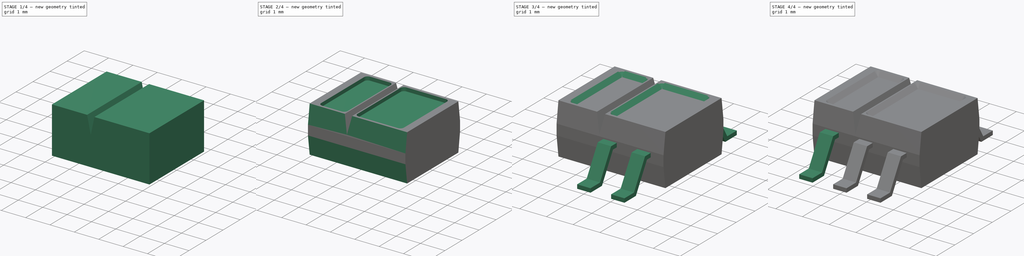
[diagram: build sequence overview — one tinted view per stage of 4, left to right]
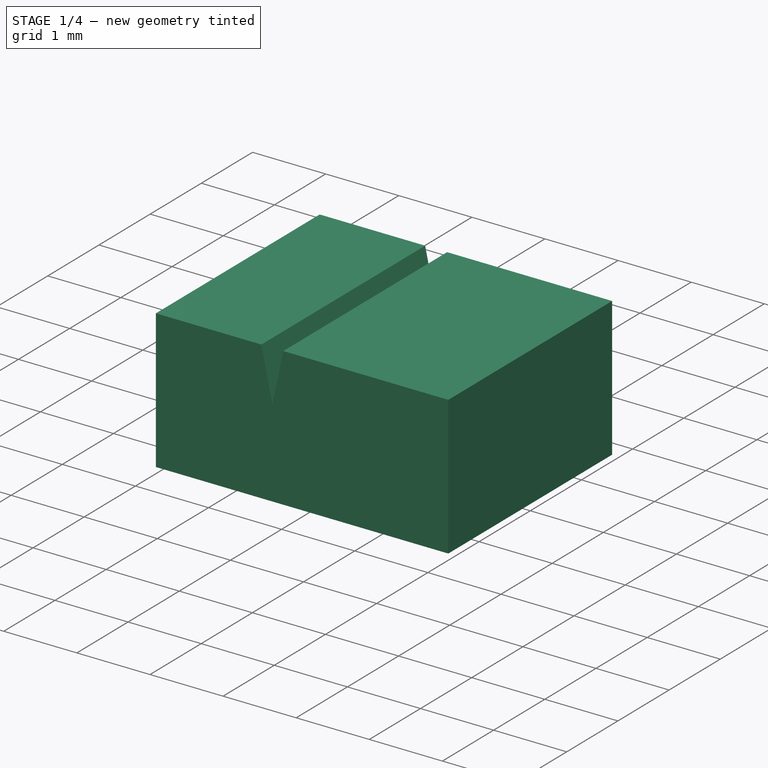
[diagram: stage 1 of 4 — iso view after this stage's code; geometry added in this stage tinted green]
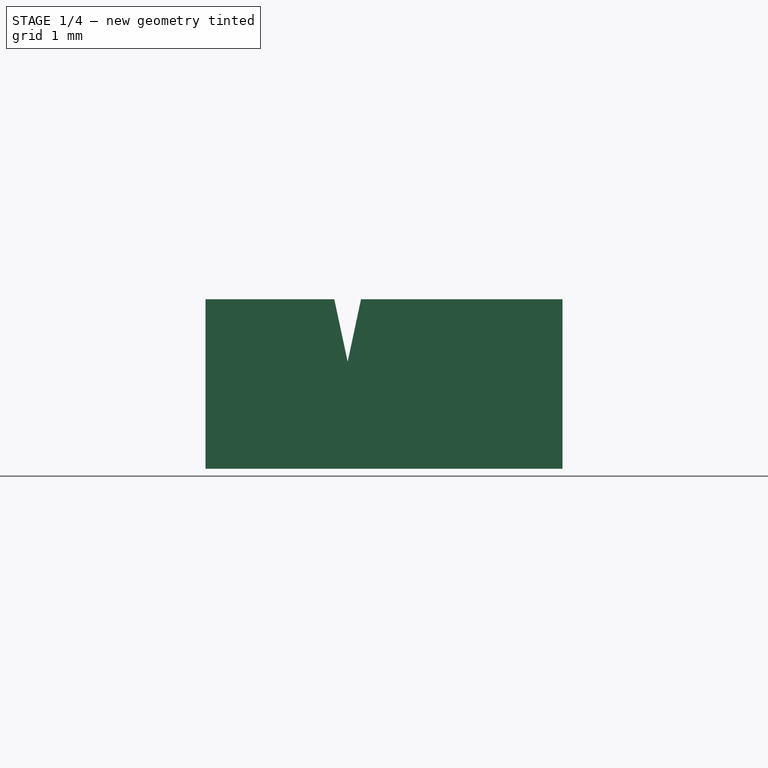
[diagram: stage 1 of 4 — front view after this stage's code; geometry added in this stage tinted green]
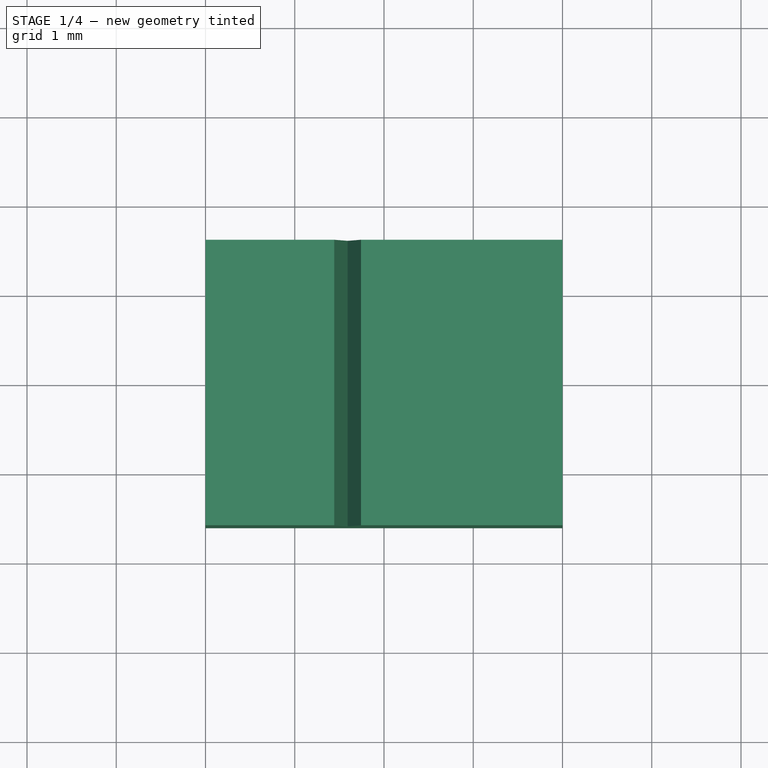
[diagram: stage 1 of 4 — top view after this stage's code; geometry added in this stage tinted green]
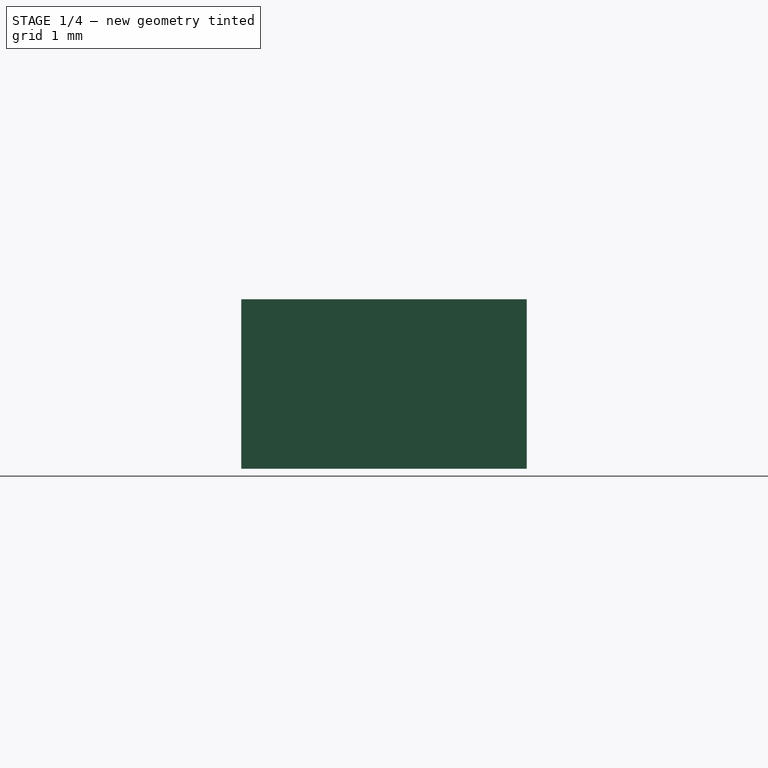
[diagram: stage 1 of 4 — right view after this stage's code; geometry added in this stage tinted green]
FCSTD DOCUMENT  (FreeCAD 0.16R6712 (Git))
Label: Osram_SFH9x0x
License: All rights reserved
LicenseURL: http://en.wikipedia.org/wiki/All_rights_reserved
objects: Sketcher::SketchObject×7, PartDesign::Pad×4, PartDesign::Pocket×3, PartDesign::Chamfer×1, Part::MultiFuse×1
note: 23 computed .brp shape members not serialized (recipe doc carries the construction recipe); baked Part::Feature solids carry a one-line shape summary decoded from their .brp

FEATURE [PartDesign::Pad] Pad
  Length = 1.9
  Length2 = 100
  Midplane = true
  Placement = pos=(0,0,1) rot=(0,0,1;0rad)
  Sketch = -> Sketch
  Type = 0
FEATURE [Sketcher::SketchObject] Sketch005
  ExternalGeometry = -> [Pad]
  Placement = pos=(0,-1.6,1) rot=(1,0,0;1.5708rad)
  Support = -> Pad [Face3]
  expr: Constraints[7] = 8.25 / 22.87 * 4
  sketch-geometry (3):
    g0: LineSegment StartX=-0.557062 StartY=0.95 StartZ=0 EndX=-0.407062 EndY=0.25 EndZ=0
    g1: LineSegment StartX=-0.407062 StartY=0.25 StartZ=0 EndX=-0.257062 EndY=0.95 EndZ=0
    g2: LineSegment StartX=-0.257062 StartY=0.95 StartZ=0 EndX=-0.557062 EndY=0.95 EndZ=0
  constraints (9):
    c: PointOnObject(g0,g-3)
    c: Coincident(g1,g0)
    c: PointOnObject(g1,g-3)
    c: Coincident(g2,g1)
    c: Coincident(g2,g0)
    c: DistanceX(g0,g1) = 0.3
    c: DistanceX(g0,g0) = 0.15
    c: DistanceX(g-4,g0) = 1.44294
    c: DistanceY(g0,g0) = 0.7
FEATURE [PartDesign::Pocket] Pocket
  Length = 5
  Placement = pos=(0,0,1) rot=(0,0,1;0rad)
  Sketch = -> Sketch005
  Type = 1
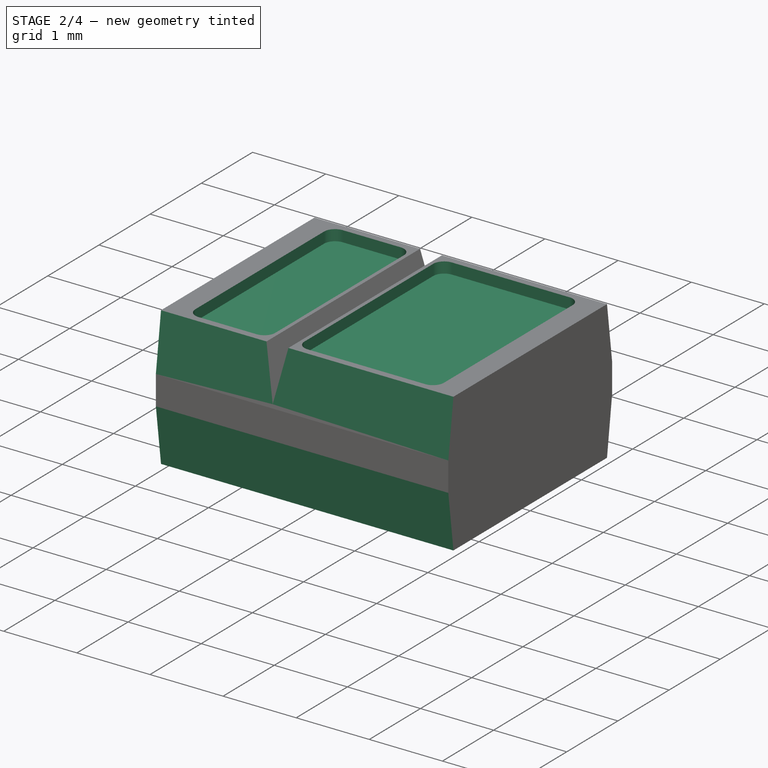
[diagram: stage 2 of 4 — iso view after this stage's code; geometry added in this stage tinted green]
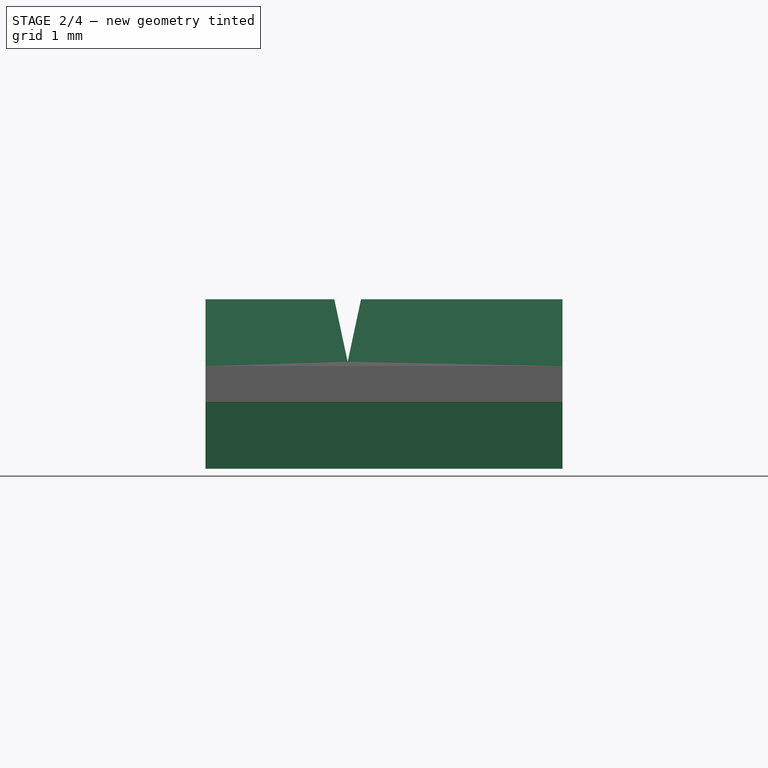
[diagram: stage 2 of 4 — front view after this stage's code; geometry added in this stage tinted green]
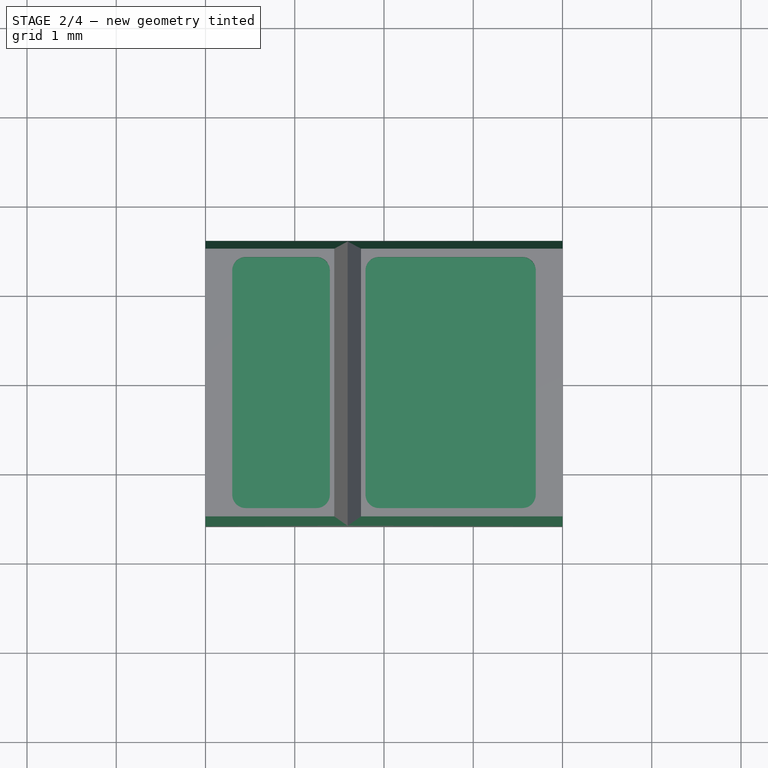
[diagram: stage 2 of 4 — top view after this stage's code; geometry added in this stage tinted green]
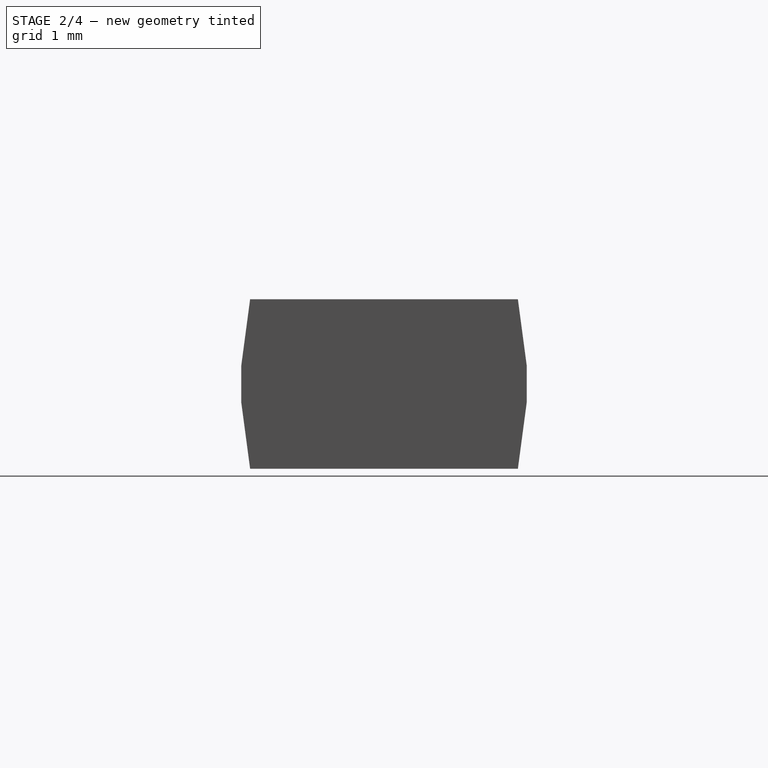
[diagram: stage 2 of 4 — right view after this stage's code; geometry added in this stage tinted green]
FEATURE [Sketcher::SketchObject] Sketch006
  ExternalGeometry = -> [Pocket]
  Placement = pos=(0,0,1.95) rot=(0,0,1;0rad)
  Support = -> Pocket [Face7]
  sketch-geometry (18):
    g0: LineSegment StartX=-0.757062 StartY=1.40684 StartZ=0 EndX=-1.55 EndY=1.40684 EndZ=0
    g1: LineSegment StartX=-1.7 StartY=1.25684 StartZ=0 EndX=-1.7 EndY=-1.25684 EndZ=0
    g2: LineSegment StartX=-1.55 StartY=-1.40684 StartZ=0 EndX=-0.757062 EndY=-1.40684 EndZ=0
    g3: LineSegment StartX=-0.607062 StartY=-1.25684 StartZ=0 EndX=-0.607062 EndY=1.25684 EndZ=0
    g4: LineSegment StartX=-0.0570617 StartY=1.40684 StartZ=0 EndX=1.55 EndY=1.40684 EndZ=0
    g5: LineSegment StartX=1.7 StartY=1.25684 StartZ=0 EndX=1.7 EndY=-1.25684 EndZ=0
    g6: LineSegment StartX=1.55 StartY=-1.40684 StartZ=0 EndX=-0.0570617 EndY=-1.40684 EndZ=0
    g7: LineSegment StartX=-0.207062 StartY=-1.25684 StartZ=0 EndX=-0.207062 EndY=1.25684 EndZ=0
    g8: ArcOfCircle CenterX=-1.55 CenterY=1.25684 CenterZ=0 NormalX=0 NormalY=0 NormalZ=1 Radius=0.15 StartAngle=1.5708 EndAngle=3.14159
    g9: ArcOfCircle CenterX=-1.55 CenterY=-1.25684 CenterZ=0 NormalX=0 NormalY=0 NormalZ=1 Radius=0.15 StartAngle=3.14159 EndAngle=4.71239
    g10: ArcOfCircle CenterX=-0.757062 CenterY=1.25684 CenterZ=0 NormalX=0 NormalY=0 NormalZ=1 Radius=0.15 StartAngle=0 EndAngle=1.5708
    g11: ArcOfCircle CenterX=-0.757062 CenterY=-1.25684 CenterZ=0 NormalX=0 NormalY=0 NormalZ=1 Radius=0.15 StartAngle=4.71239 EndAngle=6.28319
    g12: ArcOfCircle CenterX=-0.0570617 CenterY=-1.25684 CenterZ=0 NormalX=0 NormalY=0 NormalZ=1 Radius=0.15 StartAngle=3.14159 EndAngle=4.71239
    g13: ArcOfCircle CenterX=-0.0570617 CenterY=1.25684 CenterZ=0 NormalX=0 NormalY=0 NormalZ=1 Radius=0.15 StartAngle=1.5708 EndAngle=3.14159
    g14: ArcOfCircle CenterX=1.55 CenterY=1.25684 CenterZ=0 NormalX=0 NormalY=0 NormalZ=1 Radius=0.15 StartAngle=0 EndAngle=1.5708
    g15: ArcOfCircle CenterX=1.55 CenterY=-1.25684 CenterZ=0 NormalX=0 NormalY=0 NormalZ=1 Radius=0.15 StartAngle=4.71239 EndAngle=6.28319
    g16: LineSegment [constr] StartX=-0.607062 StartY=0 StartZ=0 EndX=-0.207062 EndY=0 EndZ=0
    g17: GeomPoint [constr] X=-0.407062 Y=0 Z=0
  constraints (45):
    c: Horizontal(g0)
    c: Horizontal(g2)
    c: Vertical(g1)
    c: Vertical(g3)
    c: Horizontal(g4)
    c: Horizontal(g6)
    c: Vertical(g5)
    c: Vertical(g7)
    c: Tangent(g0,g8) = -1.5708
    c: Tangent(g1,g8) = -1.5708
    c: Tangent(g1,g9) = -1.5708
    c: Tangent(g2,g9) = -1.5708
    c: Tangent(g0,g10) = -1.5708
    c: Tangent(g3,g10) = -1.5708
    c: Tangent(g2,g11) = -1.5708
    c: Tangent(g3,g11) = -1.5708
    c: Tangent(g6,g12) = 1.5708
    c: Tangent(g7,g12) = 1.5708
    c: Tangent(g7,g13) = 1.5708
    c: Tangent(g4,g13) = 1.5708
    c: Tangent(g4,g14) = 1.5708
    c: Tangent(g5,g14) = 1.5708
    c: Tangent(g5,g15) = 1.5708
    c: Tangent(g6,g15) = 1.5708
    c: Equal(g14,g13)
    c: Equal(g13,g12)
    c: Equal(g12,g15)
    c: Equal(g15,g11)
    c: Equal(g11,g9)
    c: Equal(g9,g8)
    c: Equal(g8,g10)
    c: Radius(g14) = 0.15
    c: DistanceX(g3,g-8) = 0.05
    c: DistanceX(g-7,g7) = 0.05
    c: Equal(g7,g3)
    c: DistanceY(g4,g0) = 0
    c: DistanceX(g-8,g1) = 0.3
    c: DistanceX(g5,g-7) = 0.3
    c: PointOnObject(g16,g3)
    c: PointOnObject(g16,g7)
    c: Horizontal(g16)
    c: PointOnObject(g17,g16)
    c: PointOnObject(g17,g-9)
    c: Symmetric(g7,g7,g16)
    c: Symmetric(g-9,g-9,g17)
FEATURE [PartDesign::Pocket] Pocket001
  Length = 0.15
  Placement = pos=(0,0,1) rot=(0,0,1;0rad)
  Sketch = -> Sketch006
  Type = 0
FEATURE [Sketcher::SketchObject] Sketch007
  ExternalGeometry = -> [Pocket001]
  Placement = pos=(2,0,1) rot=(0.57735,0.57735,0.57735;2.0944rad)
  Support = -> Pocket001 [Face3]
  sketch-geometry (12):
    g0: LineSegment StartX=-1.5 StartY=0.95 StartZ=0 EndX=-1.6 EndY=0.95 EndZ=0
    g1: LineSegment StartX=-1.6 StartY=0.95 StartZ=0 EndX=-1.6 EndY=0.2 EndZ=0
    g2: LineSegment StartX=-1.6 StartY=0.2 StartZ=0 EndX=-1.5 EndY=0.95 EndZ=0
    g3: LineSegment StartX=-1.6 StartY=-0.95 StartZ=0 EndX=-1.5 EndY=-0.95 EndZ=0
    g4: LineSegment StartX=-1.5 StartY=-0.95 StartZ=0 EndX=-1.6 EndY=-0.2 EndZ=0
    g5: LineSegment StartX=-1.6 StartY=-0.2 StartZ=0 EndX=-1.6 EndY=-0.95 EndZ=0
    g6: LineSegment StartX=1.6 StartY=0.95 StartZ=0 EndX=1.6 EndY=0.2 EndZ=0
    g7: LineSegment StartX=1.6 StartY=0.2 StartZ=0 EndX=1.5 EndY=0.95 EndZ=0
    g8: LineSegment StartX=1.5 StartY=0.95 StartZ=0 EndX=1.6 EndY=0.95 EndZ=0
    g9: LineSegment StartX=1.6 StartY=-0.95 StartZ=0 EndX=1.6 EndY=-0.2 EndZ=0
    g10: LineSegment StartX=1.6 StartY=-0.2 StartZ=0 EndX=1.5 EndY=-0.95 EndZ=0
    g11: LineSegment StartX=1.5 StartY=-0.95 StartZ=0 EndX=1.6 EndY=-0.95 EndZ=0
  constraints (32):
    c: PointOnObject(g0,g-3)
    c: Coincident(g0,g-3)
    c: Vertical(g1)
    c: Coincident(g2,g1)
    c: Coincident(g2,g0)
    c: DistanceX(g0,g0) = 0.1
    c: DistanceY(g1,g0) = 0.75
    c: Coincident(g3,g-4)
    c: PointOnObject(g3,g-4)
    c: Coincident(g4,g3)
    c: Coincident(g5,g4)
    c: Coincident(g5,g3)
    c: DistanceX(g3,g3) = 0.1
    c: DistanceY(g3,g4) = 0.75
    c: Coincident(g6,g-3)
    c: Vertical(g6)
    c: Coincident(g7,g6)
    c: PointOnObject(g7,g-3)
    c: Coincident(g8,g7)
    c: Coincident(g9,g-4)
    c: Vertical(g9)
    c: PointOnObject(g10,g-4)
    c: Coincident(g11,g10)
    c: Horizontal(g11)
    c: DistanceX(g10,g9) = 0.1
    c: DistanceX(g7,g6) = 0.1
    c: DistanceY(g6,g6) = 0.75
    c: DistanceY(g9,g9) = 0.75
    c: Vertical(g5)
    c: Coincident(g10,g9)
    c: Coincident(g1,g0)
    c: Coincident(g6,g8)
FEATURE [PartDesign::Pocket] Pocket002
  Length = 20
  Placement = pos=(0,0,1) rot=(0,0,1;0rad)
  Sketch = -> Sketch007
  Type = 0
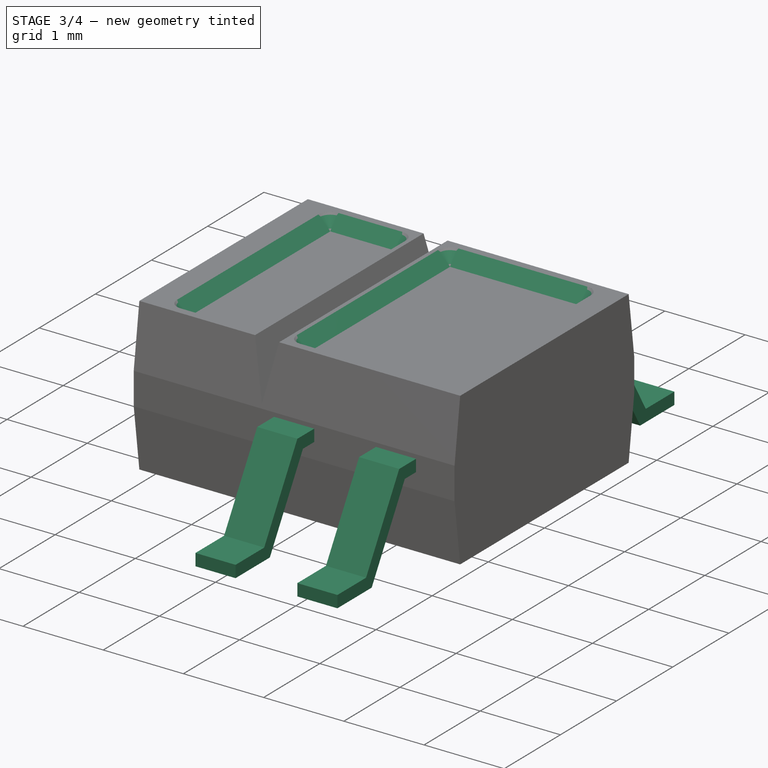
[diagram: stage 3 of 4 — iso view after this stage's code; geometry added in this stage tinted green]
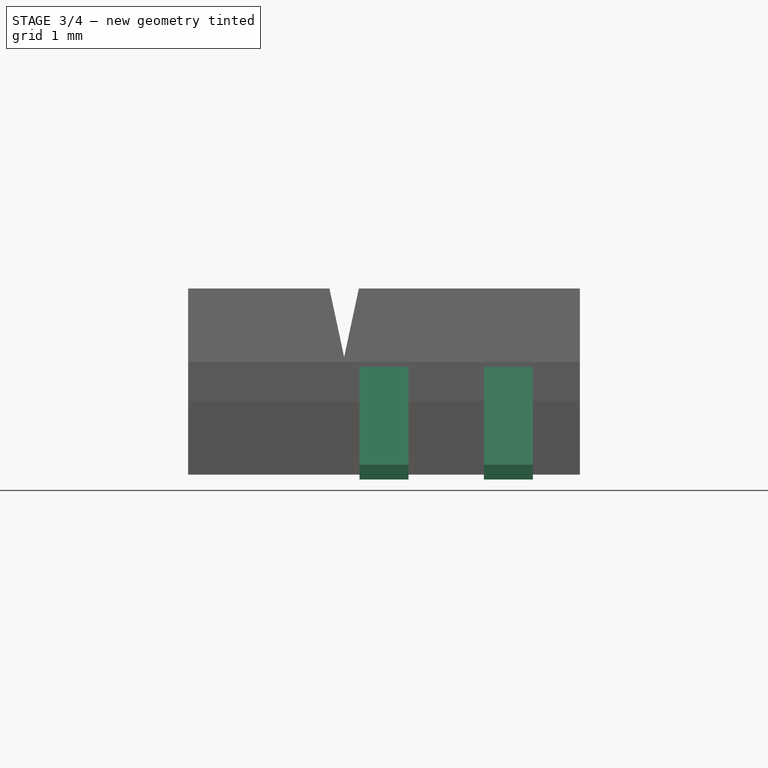
[diagram: stage 3 of 4 — front view after this stage's code; geometry added in this stage tinted green]
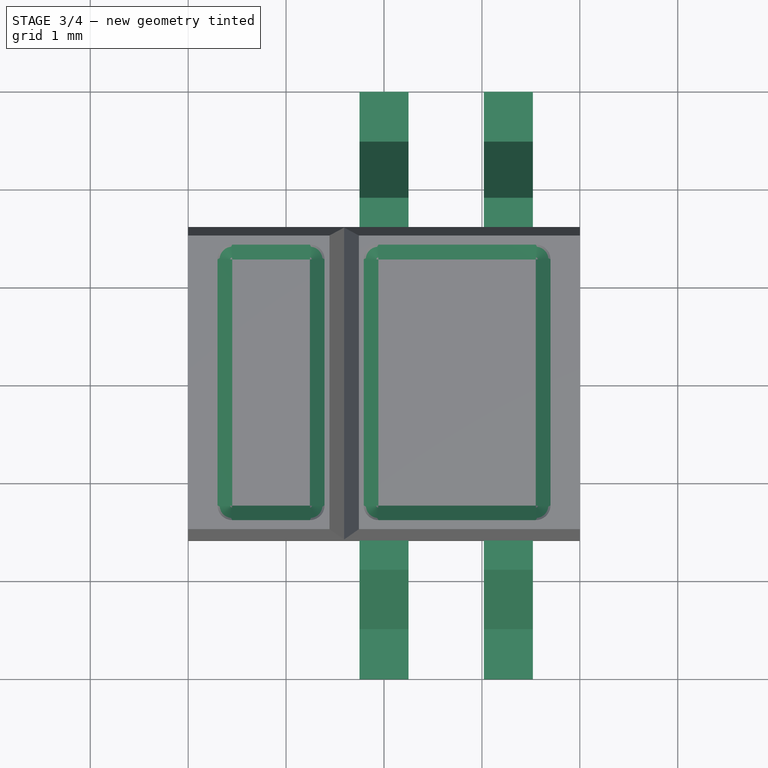
[diagram: stage 3 of 4 — top view after this stage's code; geometry added in this stage tinted green]
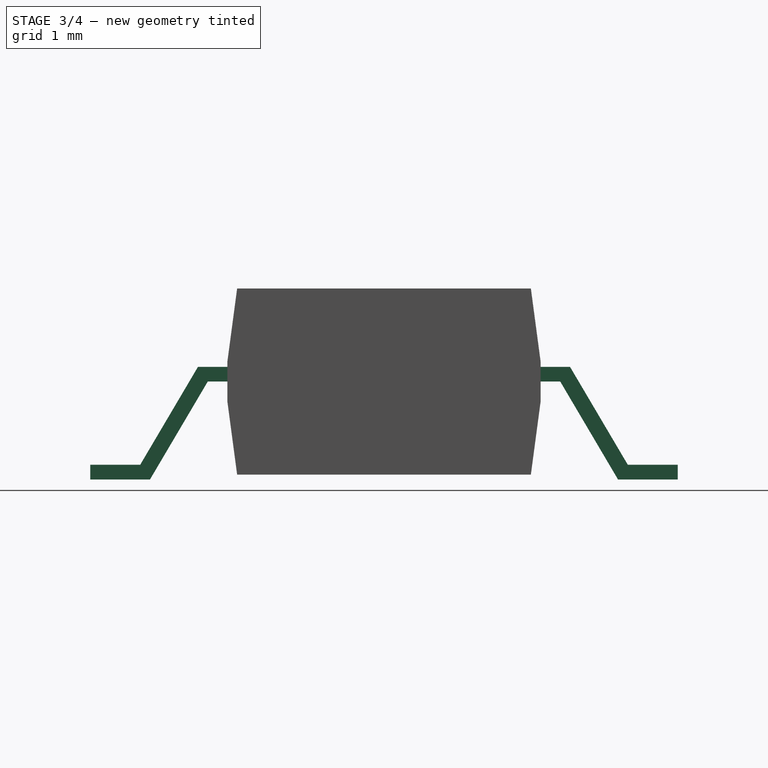
[diagram: stage 3 of 4 — right view after this stage's code; geometry added in this stage tinted green]
FEATURE [Sketcher::SketchObject] Sketch003
  Placement = pos=(0,0,0) rot=(0.57735,0.57735,0.57735;2.0944rad)
  sketch-geometry (14):
    g0: LineSegment StartX=-3 StartY=0 StartZ=0 EndX=-2.39 EndY=0 EndZ=0
    g1: LineSegment StartX=-2.39 StartY=0 StartZ=0 EndX=-1.8 EndY=1 EndZ=0
    g2: LineSegment StartX=-1.8 StartY=1 StartZ=0 EndX=1.8 EndY=1 EndZ=0
    g3: LineSegment StartX=1.8 StartY=1 StartZ=0 EndX=2.39 EndY=0 EndZ=0
    g4: LineSegment StartX=2.39 StartY=0 StartZ=0 EndX=3 EndY=0 EndZ=0
    g5: LineSegment [constr] StartX=-2.39 StartY=0 StartZ=0 EndX=2.39 EndY=0 EndZ=0
    g6: GeomPoint [constr] X=0 Y=1 Z=0
    g7: LineSegment StartX=-3 StartY=0 StartZ=0 EndX=-3 EndY=0.15 EndZ=0
    g8: LineSegment StartX=-3 StartY=0.15 StartZ=0 EndX=-2.49 EndY=0.15 EndZ=0
    g9: LineSegment StartX=-2.49 StartY=0.15 StartZ=0 EndX=-1.9 EndY=1.15 EndZ=0
    g10: LineSegment StartX=-1.9 StartY=1.15 StartZ=0 EndX=1.9 EndY=1.15 EndZ=0
    g11: LineSegment StartX=1.9 StartY=1.15 StartZ=0 EndX=2.49 EndY=0.15 EndZ=0
    g12: LineSegment StartX=2.49 StartY=0.15 StartZ=0 EndX=3 EndY=0.15 EndZ=0
    g13: LineSegment StartX=3 StartY=0.15 StartZ=0 EndX=3 EndY=0 EndZ=0
  constraints (40):
    c: PointOnObject(g0,g-1)
    c: PointOnObject(g0,g-1)
    c: Coincident(g1,g0)
    c: Coincident(g2,g1)
    c: Horizontal(g2)
    c: Coincident(g3,g2)
    c: PointOnObject(g3,g-1)
    c: Coincident(g4,g3)
    c: PointOnObject(g4,g-1)
    c: Equal(g4,g0)
    c: DistanceY(g4,g2) = 1
    c: DistanceX(g0,g4) = 6
    c: DistanceX(g0,g0) = 0.61
    c: DistanceX(g0,g1) = 1.2
    c: Coincident(g5,g0)
    c: Coincident(g5,g3)
    c: Symmetric(g5,g5,g-1)
    c: PointOnObject(g6,g2)
    c: PointOnObject(g6,g-2)
    c: Symmetric(g2,g2,g6)
    c: Coincident(g7,g0)
    c: Vertical(g7)
    c: Coincident(g8,g7)
    c: Horizontal(g8)
    c: Coincident(g9,g8)
    c: Horizontal(g10)
    c: Coincident(g11,g10)
    c: Coincident(g12,g11)
    c: Horizontal(g12)
    c: Coincident(g13,g12)
    c: Coincident(g13,g4)
    c: Vertical(g13)
    c: Coincident(g9,g10)
    c: DistanceY(g1,g9) = 0.15
    c: DistanceY(g0,g8) = 0.15
    c: DistanceX(g9,g1) = 0.1
    c: Parallel(g9,g1)
    c: Parallel(g11,g3)
    c: DistanceX(g2,g10) = 0.1
    c: Equal(g13,g7)
FEATURE [PartDesign::Pad] Pad002
  Length = 0.5
  Length2 = 100
  Midplane = true
  Placement = pos=(0,0,0) rot=(0.57735,0.57735,0.57735;2.0944rad)
  Sketch = -> Sketch003
  Type = 0
FEATURE [Sketcher::SketchObject] Sketch004
  Placement = pos=(1.27,0,0) rot=(0.57735,0.57735,0.57735;2.0944rad)
  sketch-geometry (14):
    g0: LineSegment StartX=-3 StartY=0 StartZ=0 EndX=-2.39 EndY=0 EndZ=0
    g1: LineSegment StartX=-2.39 StartY=0 StartZ=0 EndX=-1.8 EndY=1 EndZ=0
    g2: LineSegment StartX=-1.8 StartY=1 StartZ=0 EndX=1.8 EndY=1 EndZ=0
    g3: LineSegment StartX=1.8 StartY=1 StartZ=0 EndX=2.39 EndY=0 EndZ=0
    g4: LineSegment StartX=2.39 StartY=0 StartZ=0 EndX=3 EndY=0 EndZ=0
    g5: LineSegment [constr] StartX=-2.39 StartY=0 StartZ=0 EndX=2.39 EndY=0 EndZ=0
    g6: GeomPoint [constr] X=0 Y=1 Z=0
    g7: LineSegment StartX=-3 StartY=0 StartZ=0 EndX=-3 EndY=0.15 EndZ=0
    g8: LineSegment StartX=-3 StartY=0.15 StartZ=0 EndX=-2.49 EndY=0.15 EndZ=0
    g9: LineSegment StartX=-2.49 StartY=0.15 StartZ=0 EndX=-1.9 EndY=1.15 EndZ=0
    g10: LineSegment StartX=-1.9 StartY=1.15 StartZ=0 EndX=1.9 EndY=1.15 EndZ=0
    g11: LineSegment StartX=1.9 StartY=1.15 StartZ=0 EndX=2.49 EndY=0.15 EndZ=0
    g12: LineSegment StartX=2.49 StartY=0.15 StartZ=0 EndX=3 EndY=0.15 EndZ=0
    g13: LineSegment StartX=3 StartY=0.15 StartZ=0 EndX=3 EndY=0 EndZ=0
  constraints (40):
    c: PointOnObject(g0,g-1)
    c: PointOnObject(g0,g-1)
    c: Coincident(g1,g0)
    c: Coincident(g2,g1)
    c: Horizontal(g2)
    c: Coincident(g3,g2)
    c: PointOnObject(g3,g-1)
    c: Coincident(g4,g3)
    c: PointOnObject(g4,g-1)
    c: Equal(g4,g0)
    c: DistanceY(g4,g2) = 1
    c: DistanceX(g0,g4) = 6
    c: DistanceX(g0,g0) = 0.61
    c: DistanceX(g0,g1) = 1.2
    c: Coincident(g5,g0)
    c: Coincident(g5,g3)
    c: Symmetric(g5,g5,g-1)
    c: PointOnObject(g6,g2)
    c: PointOnObject(g6,g-2)
    c: Symmetric(g2,g2,g6)
    c: Coincident(g7,g0)
    c: Vertical(g7)
    c: Coincident(g8,g7)
    c: Horizontal(g8)
    c: Coincident(g9,g8)
    c: Horizontal(g10)
    c: Coincident(g11,g10)
    c: Coincident(g12,g11)
    c: Horizontal(g12)
    c: Coincident(g13,g12)
    c: Coincident(g13,g4)
    c: Vertical(g13)
    c: Coincident(g9,g10)
    c: DistanceY(g1,g9) = 0.15
    c: DistanceY(g0,g8) = 0.15
    c: DistanceX(g9,g1) = 0.1
    c: Parallel(g9,g1)
    c: Parallel(g11,g3)
    c: DistanceX(g2,g10) = 0.1
    c: Equal(g13,g7)
FEATURE [PartDesign::Pad] Pad003
  Length = 0.5
  Length2 = 100
  Midplane = true
  Placement = pos=(1.27,0,0) rot=(0.57735,0.57735,0.57735;2.0944rad)
  Sketch = -> Sketch004
  Type = 0
FEATURE [PartDesign::Chamfer] Chamfer
  Base = -> Pocket002 [Edge75,Edge71,Edge67,Edge59,Edge56,Edge64,Edge79,Edge81,Edge78,Edge65,Edge61,Edge58,Edge51,Edge53,Edge70,Edge74]
  Placement = pos=(0,0,1) rot=(0,0,1;0rad)
  Size = 0.1499
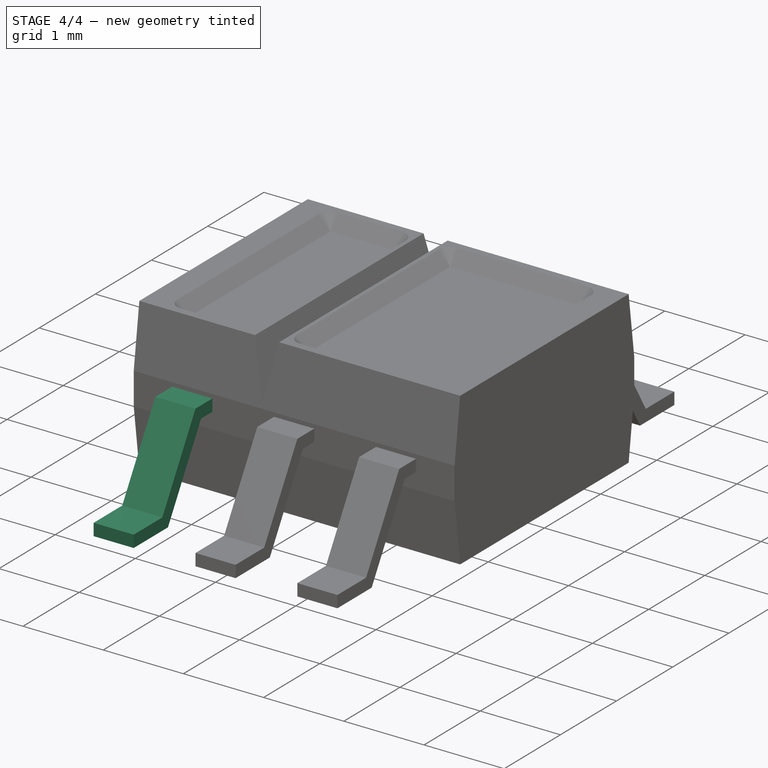
[diagram: stage 4 of 4 — iso view after this stage's code; geometry added in this stage tinted green]
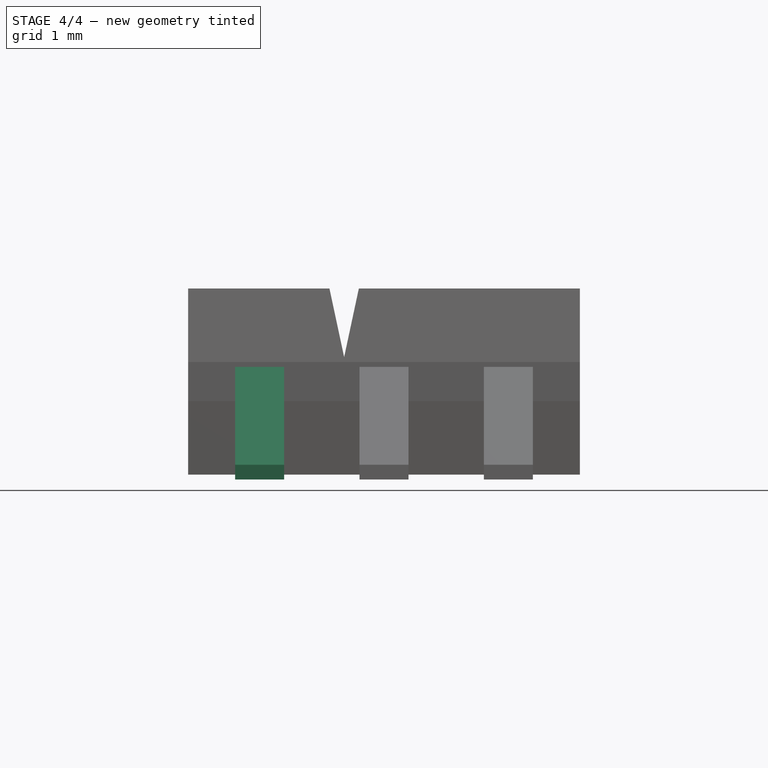
[diagram: stage 4 of 4 — front view after this stage's code; geometry added in this stage tinted green]
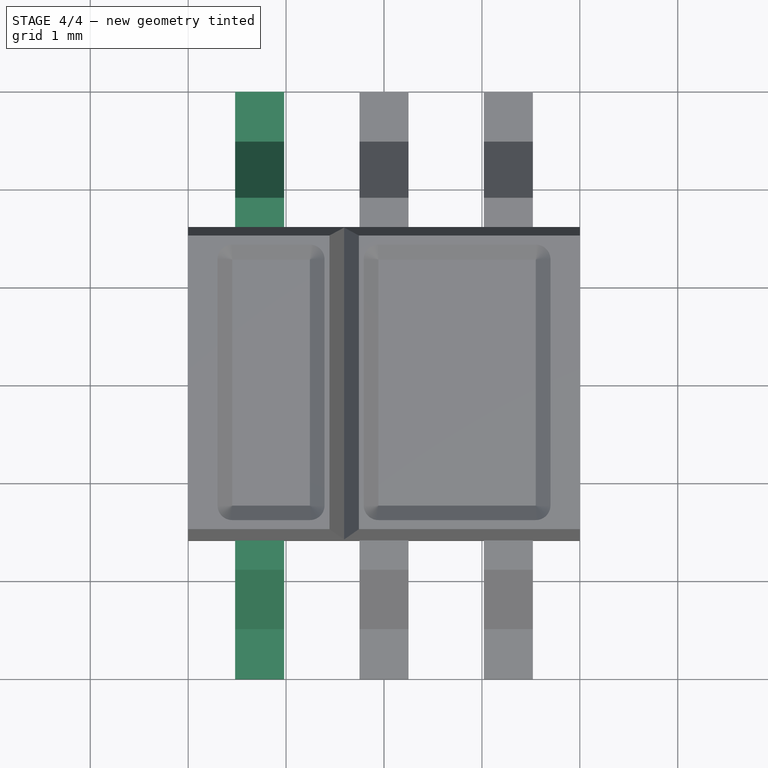
[diagram: stage 4 of 4 — top view after this stage's code; geometry added in this stage tinted green]
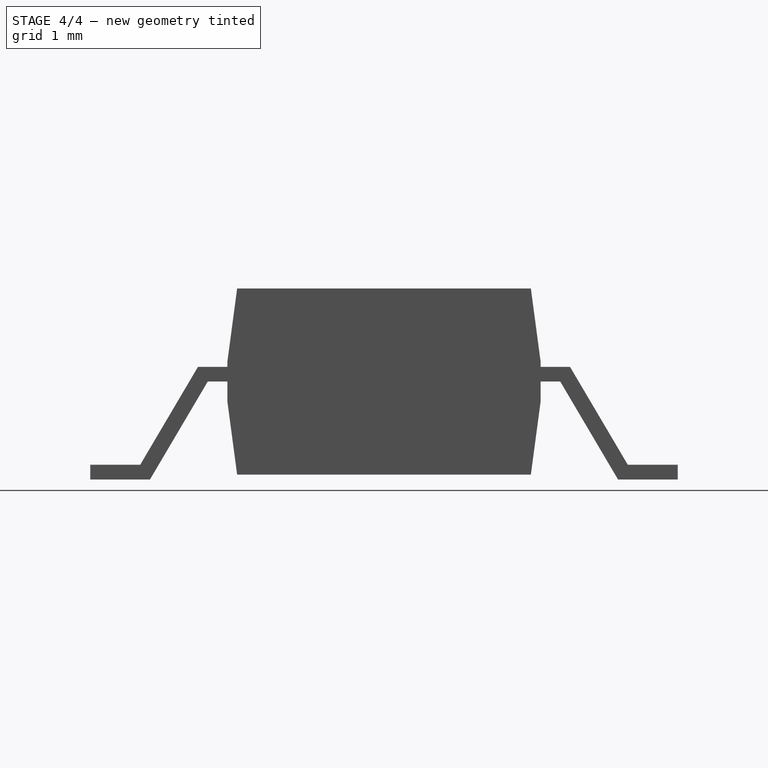
[diagram: stage 4 of 4 — right view after this stage's code; geometry added in this stage tinted green]
FEATURE [Sketcher::SketchObject] Sketch
  Placement = pos=(0,0,1) rot=(0,0,1;0rad)
  expr: Placement.Base.z = 1.9 / 2 + 0.05
  sketch-geometry (6):
    g0: LineSegment StartX=-2 StartY=1.6 StartZ=0 EndX=2 EndY=1.6 EndZ=0
    g1: LineSegment StartX=2 StartY=1.6 StartZ=0 EndX=2 EndY=-1.6 EndZ=0
    g2: LineSegment StartX=2 StartY=-1.6 StartZ=0 EndX=-2 EndY=-1.6 EndZ=0
    g3: LineSegment StartX=-2 StartY=-1.6 StartZ=0 EndX=-2 EndY=1.6 EndZ=0
    g4: LineSegment [constr] StartX=-2 StartY=0 StartZ=0 EndX=2 EndY=0 EndZ=0
    g5: LineSegment [constr] StartX=0 StartY=1.6 StartZ=0 EndX=0 EndY=-1.6 EndZ=0
  constraints (19):
    c: Coincident(g0,g1)
    c: Coincident(g1,g2)
    c: Coincident(g2,g3)
    c: Horizontal(g0)
    c: Horizontal(g2)
    c: Vertical(g1)
    c: Vertical(g3)
    c: DistanceX(g2,g2) = 4
    c: DistanceY(g1,g1) = 3.2
    c: DistanceY(g3,g0) = 0
    c: PointOnObject(g4,g1)
    c: Horizontal(g4)
    c: Vertical(g5)
    c: PointOnObject(g5,g2)
    c: Symmetric(g2,g2,g5)
    c: Symmetric(g1,g1,g4)
    c: Symmetric(g4,g4,g-1)
    c: Symmetric(g5,g5,g-1)
    c: Coincident(g0,g3)
FEATURE [Sketcher::SketchObject] Sketch002
  Placement = pos=(-1.27,0,0) rot=(0.57735,0.57735,0.57735;2.0944rad)
  expr: Constraints[10] = 1.9 / 2 + 0.05
  sketch-geometry (14):
    g0: LineSegment StartX=-3 StartY=0 StartZ=0 EndX=-2.39 EndY=0 EndZ=0
    g1: LineSegment StartX=-2.39 StartY=0 StartZ=0 EndX=-1.8 EndY=1 EndZ=0
    g2: LineSegment StartX=-1.8 StartY=1 StartZ=0 EndX=1.8 EndY=1 EndZ=0
    g3: LineSegment StartX=1.8 StartY=1 StartZ=0 EndX=2.39 EndY=0 EndZ=0
    g4: LineSegment StartX=2.39 StartY=0 StartZ=0 EndX=3 EndY=0 EndZ=0
    g5: LineSegment [constr] StartX=-2.39 StartY=0 StartZ=0 EndX=2.39 EndY=0 EndZ=0
    g6: GeomPoint [constr] X=0 Y=1 Z=0
    g7: LineSegment StartX=-3 StartY=0 StartZ=0 EndX=-3 EndY=0.15 EndZ=0
    g8: LineSegment StartX=-3 StartY=0.15 StartZ=0 EndX=-2.49 EndY=0.15 EndZ=0
    g9: LineSegment StartX=-2.49 StartY=0.15 StartZ=0 EndX=-1.9 EndY=1.15 EndZ=0
    g10: LineSegment StartX=-1.9 StartY=1.15 StartZ=0 EndX=1.9 EndY=1.15 EndZ=0
    g11: LineSegment StartX=1.9 StartY=1.15 StartZ=0 EndX=2.49 EndY=0.15 EndZ=0
    g12: LineSegment StartX=2.49 StartY=0.15 StartZ=0 EndX=3 EndY=0.15 EndZ=0
    g13: LineSegment StartX=3 StartY=0.15 StartZ=0 EndX=3 EndY=0 EndZ=0
  constraints (40):
    c: PointOnObject(g0,g-1)
    c: PointOnObject(g0,g-1)
    c: Coincident(g1,g0)
    c: Coincident(g2,g1)
    c: Horizontal(g2)
    c: Coincident(g3,g2)
    c: PointOnObject(g3,g-1)
    c: Coincident(g4,g3)
    c: PointOnObject(g4,g-1)
    c: Equal(g4,g0)
    c: DistanceY(g4,g2) = 1
    c: DistanceX(g0,g4) = 6
    c: DistanceX(g0,g0) = 0.61
    c: DistanceX(g0,g1) = 1.2
    c: Coincident(g5,g0)
    c: Coincident(g5,g3)
    c: Symmetric(g5,g5,g-1)
    c: PointOnObject(g6,g2)
    c: PointOnObject(g6,g-2)
    c: Symmetric(g2,g2,g6)
    c: Coincident(g7,g0)
    c: Vertical(g7)
    c: Coincident(g8,g7)
    c: Horizontal(g8)
    c: Coincident(g9,g8)
    c: Horizontal(g10)
    c: Coincident(g11,g10)
    c: Coincident(g12,g11)
    c: Horizontal(g12)
    c: Coincident(g13,g12)
    c: Coincident(g13,g4)
    c: Vertical(g13)
    c: Coincident(g9,g10)
    c: DistanceY(g1,g9) = 0.15
    c: DistanceY(g0,g8) = 0.15
    c: DistanceX(g9,g1) = 0.1
    c: Parallel(g9,g1)
    c: Parallel(g11,g3)
    c: DistanceX(g2,g10) = 0.1
    c: Equal(g13,g7)
FEATURE [PartDesign::Pad] Pad001
  Length = 0.5
  Length2 = 100
  Midplane = true
  Placement = pos=(-1.27,0,0) rot=(0.57735,0.57735,0.57735;2.0944rad)
  Reversed = true
  Sketch = -> Sketch002
  Type = 0
FEATURE [Part::MultiFuse] Pad001_mp_cp  label="Osram_SFH9x0x"
  Shapes = -> [Pad001,Pad002,Pad003,Chamfer]
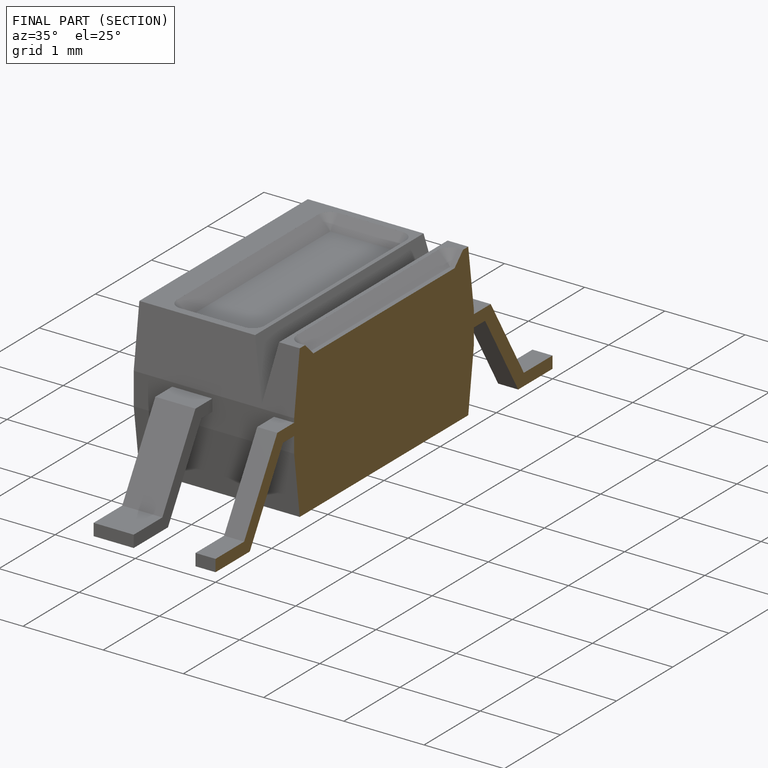
[diagram: finished part — half-section view (interior)]
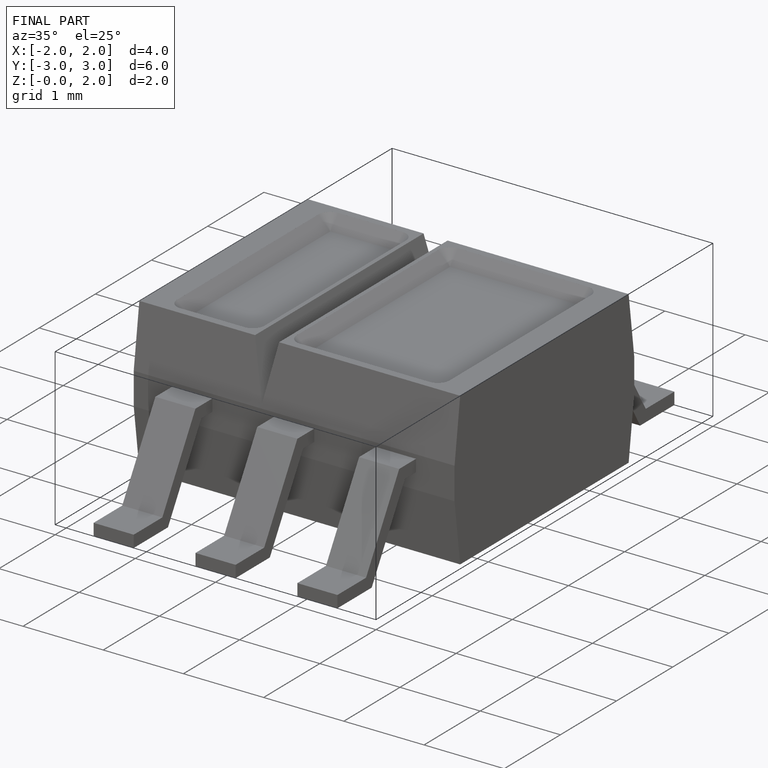
[diagram: finished part — iso view with bounding-box wireframe]
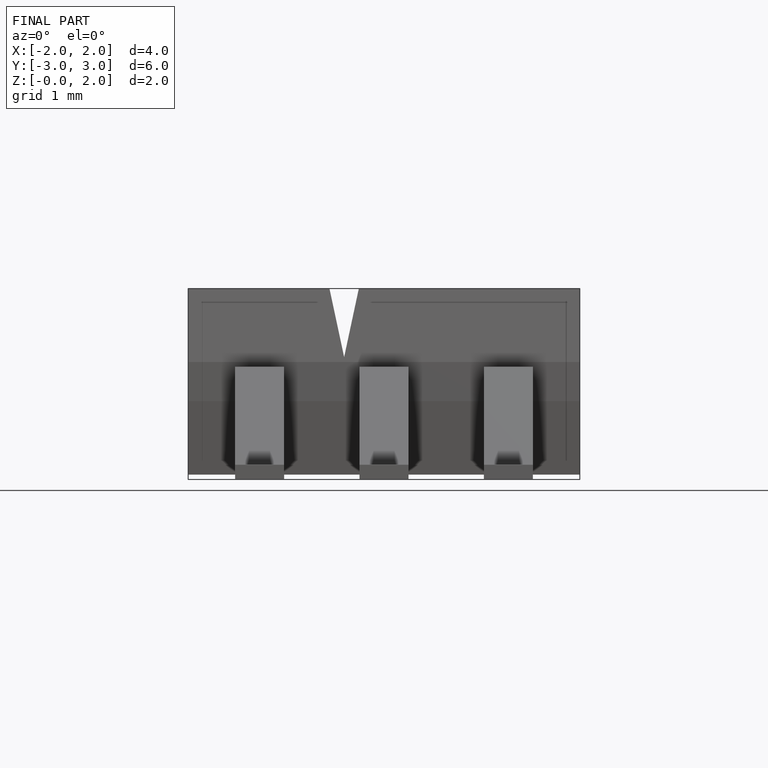
[diagram: finished part — front view with bounding-box wireframe]
